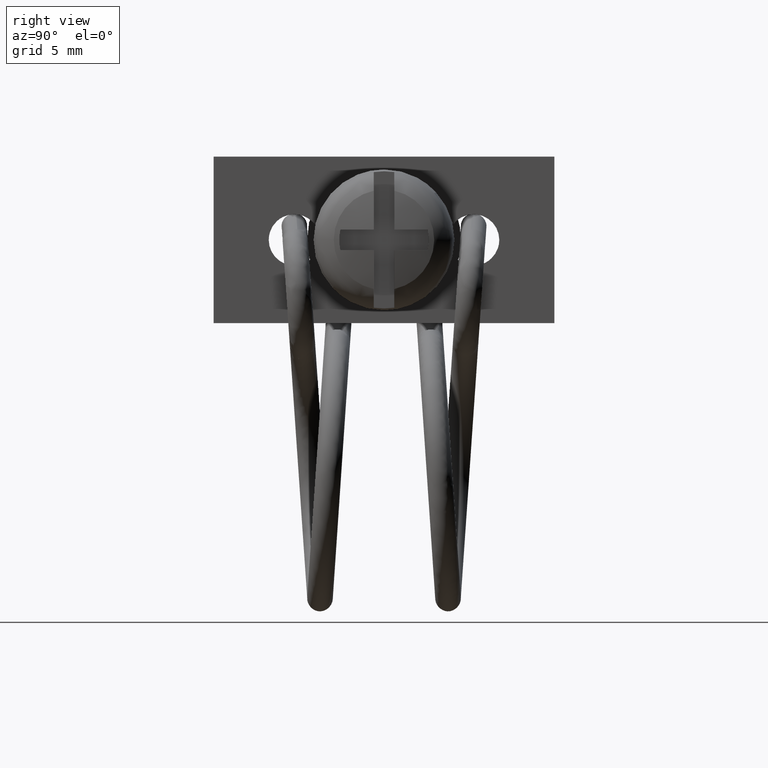
[diagram: clean part render]
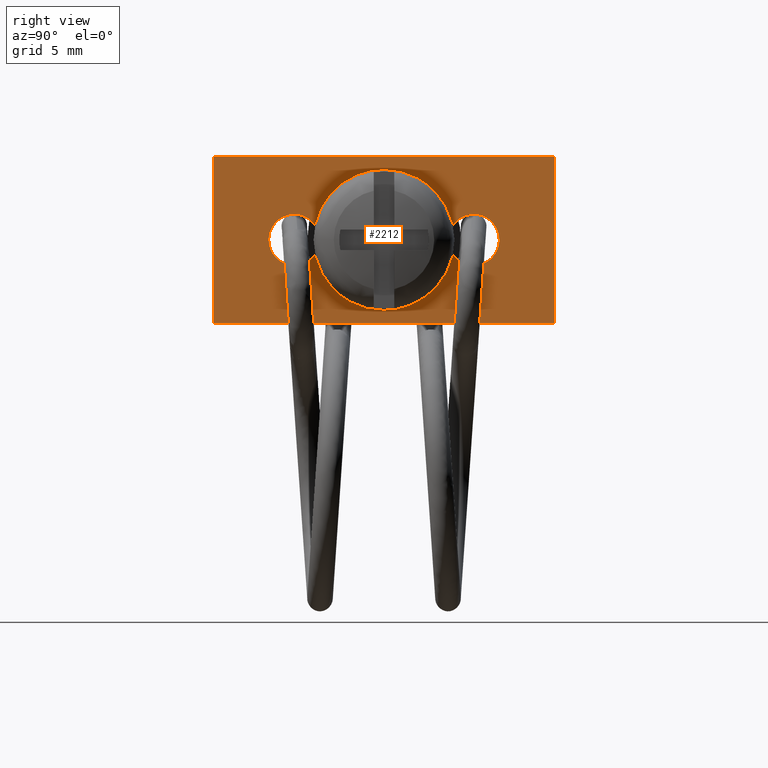
[diagram: same view with one face highlighted and labeled with its STEP entity id]
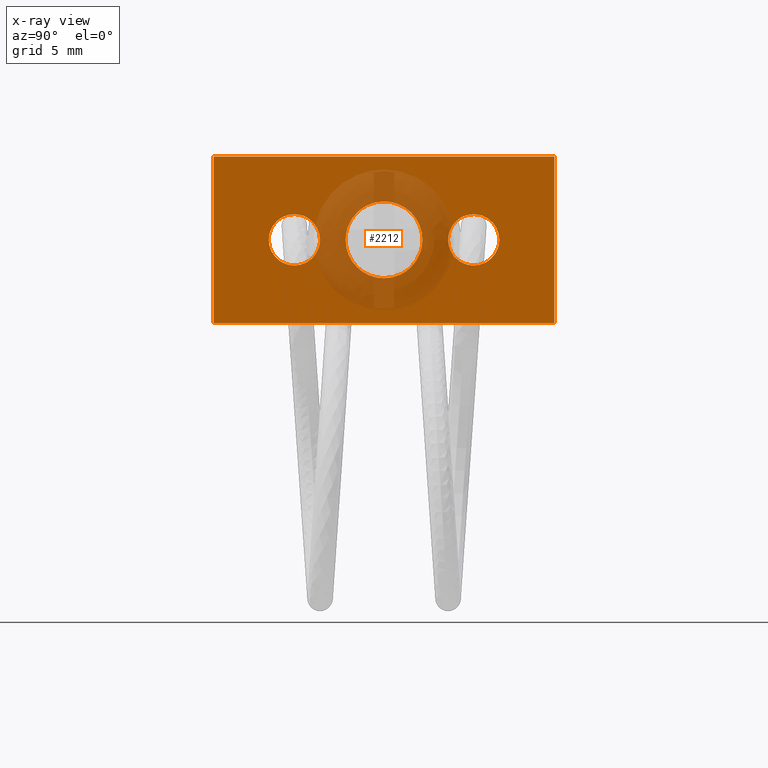
[diagram: x-ray of the same camera — body ghosted, the highlighted face saturated]
A machine part, right view. The second image highlights one B-rep face of the part: STEP entity #2212.
The next image is the same camera in x-ray: the body ghosted, the highlighted face saturated — about 22% of this face is hidden behind the body in this view.
In plain terms, the highlighted face is a freeform B-spline surface patch.
Its self-contained STEP definition (entity closure, byte-faithful):
#1555=CARTESIAN_POINT('',(-5.900000000001095,-1.032531797535872,1.088061513649614));
#1556=VERTEX_POINT('',#1555);
#1557=CARTESIAN_POINT('',(-5.900000000000131,-1.499999999999969,-0.000000306542247));
#1558=VERTEX_POINT('',#1557);
#1559=CARTESIAN_POINT('',(-5.900000000001095,-1.032531797535872,1.088061513649614));
#1560=CARTESIAN_POINT('',(-5.900000000001033,-1.106129832539798,1.018239980555063));
#1561=CARTESIAN_POINT('',(-5.900000000000914,-1.226600928167503,0.878077534558320));
#1562=CARTESIAN_POINT('',(-5.900000000000677,-1.373615478559582,0.625028328913104));
#1563=CARTESIAN_POINT('',(-5.900000000000413,-1.474550840499157,0.336035432404864));
#1564=CARTESIAN_POINT('',(-5.900000000000254,-1.500023612764805,0.114129939488918));
#1565=CARTESIAN_POINT('',(-5.900000000000131,-1.499999999999969,-0.000000306542247));
#1566=B_SPLINE_CURVE_WITH_KNOTS('',3,(#1559,#1560,#1561,#1562,#1563,#1564,#1565),.UNSPECIFIED.,.F.,.U.,(4,1,1,1,4),(8.304054E-009,0.304343907042473,0.551625936408508,0.874988564327312,1.217375603267834),.UNSPECIFIED.);
#1567=EDGE_CURVE('',#1556,#1558,#1566,.T.);
#1569=CARTESIAN_POINT('',(-5.900000000000130,0.0,-1.500000000000171));
#1570=VERTEX_POINT('',#1569);
#1571=CARTESIAN_POINT('',(-5.900000000000131,-1.499999999999969,-0.000000306542247));
#1572=CARTESIAN_POINT('',(-5.900000000000142,-1.500042704179205,-0.134993819110151));
#1573=CARTESIAN_POINT('',(-5.900000000000113,-1.468308313607464,-0.368136428588233));
#1574=CARTESIAN_POINT('',(-5.900000000000148,-1.352906690030002,-0.667259607449130));
#1575=CARTESIAN_POINT('',(-5.900000000000124,-1.207521510338877,-0.903197800757245));
#1576=CARTESIAN_POINT('',(-5.900000000000131,-1.002040813496824,-1.132776335230940));
#1577=CARTESIAN_POINT('',(-5.900000000000168,-0.750222372619721,-1.312436452338162));
#1578=CARTESIAN_POINT('',(-5.900000000000111,-0.404916263680191,-1.460458063210951));
#1579=CARTESIAN_POINT('',(-5.900000000000127,-0.159547670841933,-1.500082084193493));
#1580=CARTESIAN_POINT('',(-5.900000000000130,0.0,-1.500000000000171));
#1581=B_SPLINE_CURVE_WITH_KNOTS('',3,(#1571,#1572,#1573,#1574,#1575,#1576,#1577,#1578,#1579,#1580),.UNSPECIFIED.,.F.,.U.,(4,1,1,1,1,1,1,4),(0.000000030715697,0.404971545806416,0.699500053865000,0.957216848251597,1.233324215148115,1.619890750688521,1.877604828102513,2.356209101540947),.UNSPECIFIED.);
#1582=EDGE_CURVE('',#1558,#1570,#1581,.T.);
#1584=CARTESIAN_POINT('',(-5.900000000001093,1.032531797535873,-1.088061513649955));
#1585=VERTEX_POINT('',#1584);
#1586=CARTESIAN_POINT('',(-5.900000000000130,0.0,-1.500000000000171));
#1587=CARTESIAN_POINT('',(-5.900000000000244,0.118627621835350,-1.500019789771499));
#1588=CARTESIAN_POINT('',(-5.900000000000452,0.373680292147129,-1.469618145456077));
#1589=CARTESIAN_POINT('',(-5.900000000000883,0.730383987527614,-1.329750820967652));
#1590=CARTESIAN_POINT('',(-5.900000000000935,0.942195047924228,-1.173819824457009));
#1591=CARTESIAN_POINT('',(-5.900000000001093,1.032531797535873,-1.088061513649955));
#1592=B_SPLINE_CURVE_WITH_KNOTS('',3,(#1586,#1587,#1588,#1589,#1590,#1591),.UNSPECIFIED.,.F.,.U.,(4,1,1,4),(6.853292E-009,0.355886883613740,0.765152420366507,1.138833966742657),.UNSPECIFIED.);
#1593=EDGE_CURVE('',#1570,#1585,#1592,.T.);
#1667=CARTESIAN_POINT('',(-5.900000000000130,0.0,1.499999999999830));
#1668=VERTEX_POINT('',#1667);
#1669=CARTESIAN_POINT('',(-5.900000000000130,0.0,1.499999999999830));
#1670=CARTESIAN_POINT('',(-5.900000000000272,-0.148294127207763,1.500064826747011));
#1671=CARTESIAN_POINT('',(-5.900000000000480,-0.373642643602029,1.466295249124387));
#1672=CARTESIAN_POINT('',(-5.900000000000818,-0.728116427871650,1.327295485561454));
#1673=CARTESIAN_POINT('',(-5.900000000000961,-0.920713735988198,1.194286910168968));
#1674=CARTESIAN_POINT('',(-5.900000000001095,-1.032531797535872,1.088061513649614));
#1675=B_SPLINE_CURVE_WITH_KNOTS('',3,(#1669,#1670,#1671,#1672,#1673,#1674),.UNSPECIFIED.,.F.,.U.,(4,1,1,4),(6.853397E-009,0.444858228924139,0.676181150906479,1.138833966742657),.UNSPECIFIED.);
#1676=EDGE_CURVE('',#1668,#1556,#1675,.T.);
#1718=CARTESIAN_POINT('',(-5.900000000000130,1.499999999999969,0.000000306541901));
#1719=VERTEX_POINT('',#1718);
#1720=CARTESIAN_POINT('',(-5.900000000001093,1.032531797535873,-1.088061513649955));
#1721=CARTESIAN_POINT('',(-5.900000000001030,1.106129998182039,-1.018239885424675));
#1722=CARTESIAN_POINT('',(-5.900000000000915,1.226602724604285,-0.878078345424862));
#1723=CARTESIAN_POINT('',(-5.900000000000697,1.348029915642163,-0.669032468365363));
#1724=CARTESIAN_POINT('',(-5.900000000000563,1.463046879543928,-0.386716074459029));
#1725=CARTESIAN_POINT('',(-5.900000000000184,1.500106872286609,-0.164870736578521));
#1726=CARTESIAN_POINT('',(-5.900000000000130,1.499999999999969,0.000000306541901));
#1727=B_SPLINE_CURVE_WITH_KNOTS('',3,(#1720,#1721,#1722,#1723,#1724,#1725,#1726),.UNSPECIFIED.,.F.,.U.,(4,1,1,1,4),(8.304033E-009,0.304343907042472,0.551625936408511,0.722813548741769,1.217375603267829),.UNSPECIFIED.);
#1728=EDGE_CURVE('',#1585,#1719,#1727,.T.);
#1730=CARTESIAN_POINT('',(-5.900000000000130,1.499999999999969,0.000000306541901));
#1731=CARTESIAN_POINT('',(-5.900000000000136,1.500021682724829,0.110447039272367));
#1732=CARTESIAN_POINT('',(-5.900000000000106,1.477531470957874,0.312923181658480));
#1733=CARTESIAN_POINT('',(-5.900000000000194,1.392169977830831,0.576746133670498));
#1734=CARTESIAN_POINT('',(-5.900000000000015,1.281655151221123,0.789735842256116));
#1735=CARTESIAN_POINT('',(-5.900000000000218,1.144701102748516,0.979220649435120));
#1736=CARTESIAN_POINT('',(-5.900000000000155,0.979218858541399,1.144698517724781));
#1737=CARTESIAN_POINT('',(-5.900000000000066,0.754837750925436,1.306898278449935));
#1738=CARTESIAN_POINT('',(-5.900000000000182,0.435607785729678,1.455520821769055));
#1739=CARTESIAN_POINT('',(-5.900000000000122,0.159543261076539,1.500090411338176));
#1740=CARTESIAN_POINT('',(-5.900000000000130,0.0,1.499999999999830));
#1741=B_SPLINE_CURVE_WITH_KNOTS('',3,(#1730,#1731,#1732,#1733,#1734,#1735,#1736,#1737,#1738,#1739,#1740),.UNSPECIFIED.,.F.,.U.,(4,1,1,1,1,1,1,1,4),(0.000000030715761,0.331336866893106,0.607460509203656,0.828357660251212,1.049252507287717,1.306956372232151,1.527851760465190,1.877604828102522,2.356209101540949),.UNSPECIFIED.);
#1742=EDGE_CURVE('',#1719,#1668,#1741,.T.);
#1765=CARTESIAN_POINT('',(-5.900000000000813,-4.188354491579388,0.725374323177778));
#1766=VERTEX_POINT('',#1765);
#1767=CARTESIAN_POINT('',(-5.900000000000130,-4.499999999999622,-0.000000370900842));
#1768=VERTEX_POINT('',#1767);
#1769=CARTESIAN_POINT('',(-5.900000000000813,-4.188354491579388,0.725374323177778));
#1770=CARTESIAN_POINT('',(-5.900000000000743,-4.258904621903266,0.658475248955350));
#1771=CARTESIAN_POINT('',(-5.900000000000626,-4.369678970430304,0.517333198887897));
#1772=CARTESIAN_POINT('',(-5.900000000000409,-4.475645173892794,0.266279596467909));
#1773=CARTESIAN_POINT('',(-5.900000000000211,-4.500036099697526,0.092997765195931));
#1774=CARTESIAN_POINT('',(-5.900000000000130,-4.499999999999622,-0.000000370900842));
#1775=B_SPLINE_CURVE_WITH_KNOTS('',3,(#1769,#1770,#1771,#1772,#1773,#1774),.UNSPECIFIED.,.F.,.U.,(4,1,1,4),(9.366217E-009,0.291665252574503,0.532601464205351,0.811583901024203),.UNSPECIFIED.);
#1776=EDGE_CURVE('',#1766,#1768,#1775,.T.);
#1778=CARTESIAN_POINT('',(-5.900000000000130,-3.499999999999690,-1.000000000000171));
#1779=VERTEX_POINT('',#1778);
#1780=CARTESIAN_POINT('',(-5.900000000000130,-4.499999999999622,-0.000000370900842));
#1781=CARTESIAN_POINT('',(-5.900000000000130,-4.500002100046594,-0.065448532134331));
#1782=CARTESIAN_POINT('',(-5.900000000000127,-4.485110616842539,-0.216807784289136));
#1783=CARTESIAN_POINT('',(-5.900000000000150,-4.417898843964864,-0.416136590969004));
#1784=CARTESIAN_POINT('',(-5.900000000000105,-4.314452272544851,-0.588685144265781));
#1785=CARTESIAN_POINT('',(-5.900000000000135,-4.188419942789047,-0.734811707832114));
#1786=CARTESIAN_POINT('',(-5.900000000000108,-4.031835545527999,-0.855472701033760));
#1787=CARTESIAN_POINT('',(-5.900000000000157,-3.798556531606422,-0.967577146280402));
#1788=CARTESIAN_POINT('',(-5.900000000000079,-3.618644943444631,-1.000097335123048));
#1789=CARTESIAN_POINT('',(-5.900000000000130,-3.499999999999690,-1.000000000000171));
#1790=B_SPLINE_CURVE_WITH_KNOTS('',3,(#1780,#1781,#1782,#1783,#1784,#1785,#1786,#1787,#1788,#1789),.UNSPECIFIED.,.F.,.U.,(4,1,1,1,1,1,1,4),(0.000000035211010,0.196349329133705,0.454062426315125,0.625874782290637,0.797664209456594,1.030837526579922,1.214921204998408,1.570805973831176),.UNSPECIFIED.);
#1791=EDGE_CURVE('',#1768,#1779,#1790,.T.);
#1793=CARTESIAN_POINT('',(-5.900000000000812,-2.811645508419993,-0.725374323178118));
#1794=VERTEX_POINT('',#1793);
#1795=CARTESIAN_POINT('',(-5.900000000000130,-3.499999999999690,-1.000000000000171));
#1796=CARTESIAN_POINT('',(-5.900000000000272,-3.381353209078258,-1.000100184153617));
#1797=CARTESIAN_POINT('',(-5.900000000000364,-3.219300236670589,-0.970804297666758));
#1798=CARTESIAN_POINT('',(-5.900000000000689,-2.987845720832607,-0.867108721357843));
#1799=CARTESIAN_POINT('',(-5.900000000000719,-2.877597457692114,-0.788006614315527));
#1800=CARTESIAN_POINT('',(-5.900000000000812,-2.811645508419993,-0.725374323178118));
#1801=B_SPLINE_CURVE_WITH_KNOTS('',3,(#1795,#1796,#1797,#1798,#1799,#1800),.UNSPECIFIED.,.F.,.U.,(4,1,1,4),(7.586088E-009,0.355887627921701,0.486376407151882,0.759222612870655),.UNSPECIFIED.);
#1802=EDGE_CURVE('',#1779,#1794,#1801,.T.);
#1875=CARTESIAN_POINT('',(-5.900000000000130,-3.499999999999690,0.999999999999830));
#1876=VERTEX_POINT('',#1875);
#1877=CARTESIAN_POINT('',(-5.900000000000130,-3.499999999999690,0.999999999999830));
#1878=CARTESIAN_POINT('',(-5.900000000000229,-3.610734097593737,1.000078976371559));
#1879=CARTESIAN_POINT('',(-5.900000000000398,-3.764896286228329,0.974113418484419));
#1880=CARTESIAN_POINT('',(-5.900000000000623,-3.998748487200705,0.875950713270892));
#1881=CARTESIAN_POINT('',(-5.900000000000712,-4.116675556385537,0.793464361866309));
#1882=CARTESIAN_POINT('',(-5.900000000000813,-4.188354491579388,0.725374323177778));
#1883=B_SPLINE_CURVE_WITH_KNOTS('',3,(#1877,#1878,#1879,#1880,#1881,#1882),.UNSPECIFIED.,.F.,.U.,(4,1,1,4),(7.585869E-009,0.332162861794072,0.462650653076990,0.759222612870657),.UNSPECIFIED.);
#1884=EDGE_CURVE('',#1876,#1766,#1883,.T.);
#1924=CARTESIAN_POINT('',(-5.900000000000130,-2.499999999999759,0.000000370900509));
#1925=VERTEX_POINT('',#1924);
#1926=CARTESIAN_POINT('',(-5.900000000000812,-2.811645508419993,-0.725374323178118));
#1927=CARTESIAN_POINT('',(-5.900000000000738,-2.725712674477152,-0.643963797713920));
#1928=CARTESIAN_POINT('',(-5.900000000000580,-2.613934833859558,-0.491670149789388));
#1929=CARTESIAN_POINT('',(-5.900000000000379,-2.519417281578669,-0.236697695365334));
#1930=CARTESIAN_POINT('',(-5.900000000000197,-2.499976111480998,-0.084541251358050));
#1931=CARTESIAN_POINT('',(-5.900000000000130,-2.499999999999759,0.000000370900509));
#1932=B_SPLINE_CURVE_WITH_KNOTS('',3,(#1926,#1927,#1928,#1929,#1930,#1931),.UNSPECIFIED.,.F.,.U.,(4,1,1,4),(9.366200E-009,0.355072026865380,0.557963328561572,0.811583901024209),.UNSPECIFIED.);
#1933=EDGE_CURVE('',#1794,#1925,#1932,.T.);
#1935=CARTESIAN_POINT('',(-5.900000000000130,-2.499999999999759,0.000000370900509));
#1936=CARTESIAN_POINT('',(-5.900000000000159,-2.499979109856027,0.081813202309974));
#1937=CARTESIAN_POINT('',(-5.900000000000110,-2.517673654969885,0.224973959905671));
#1938=CARTESIAN_POINT('',(-5.900000000000167,-2.592472997726572,0.438175956174377));
#1939=CARTESIAN_POINT('',(-5.900000000000071,-2.715698549802251,0.638190681935996));
#1940=CARTESIAN_POINT('',(-5.900000000000204,-2.889102975036270,0.803280047982946));
#1941=CARTESIAN_POINT('',(-5.900000000000022,-3.077335781413258,0.912956720898809));
#1942=CARTESIAN_POINT('',(-5.900000000000211,-3.275026012984923,0.982328496377931));
#1943=CARTESIAN_POINT('',(-5.900000000000108,-3.418187262735819,1.000019101395890));
#1944=CARTESIAN_POINT('',(-5.900000000000130,-3.499999999999690,0.999999999999830));
#1945=B_SPLINE_CURVE_WITH_KNOTS('',3,(#1935,#1936,#1937,#1938,#1939,#1940,#1941,#1942,#1943,#1944),.UNSPECIFIED.,.F.,.U.,(4,1,1,1,1,1,1,4),(0.000000035211648,0.245434718905132,0.429518268672775,0.674959904176194,0.944931254291074,1.141287772809012,1.325371451160292,1.570805973831173),.UNSPECIFIED.);
#1946=EDGE_CURVE('',#1925,#1876,#1945,.T.);
#1969=CARTESIAN_POINT('',(-5.900000000000813,2.811645508420186,0.725374323177778));
#1970=VERTEX_POINT('',#1969);
#1971=CARTESIAN_POINT('',(-5.900000000000130,2.499999999999954,-0.000000370900842));
#1972=VERTEX_POINT('',#1971);
#1973=CARTESIAN_POINT('',(-5.900000000000813,2.811645508420186,0.725374323177778));
#1974=CARTESIAN_POINT('',(-5.900000000000763,2.744164564273627,0.661382548771315));
#1975=CARTESIAN_POINT('',(-5.900000000000639,2.656513944680746,0.551137458211312));
#1976=CARTESIAN_POINT('',(-5.900000000000489,2.567600724565235,0.372931974536817));
#1977=CARTESIAN_POINT('',(-5.900000000000313,2.514184742742387,0.202892650386148));
#1978=CARTESIAN_POINT('',(-5.900000000000223,2.499988842601890,0.071858687519662));
#1979=CARTESIAN_POINT('',(-5.900000000000130,2.499999999999954,-0.000000370900842));
#1980=B_SPLINE_CURVE_WITH_KNOTS('',3,(#1973,#1974,#1975,#1976,#1977,#1978,#1979),.UNSPECIFIED.,.F.,.U.,(4,1,1,1,4),(9.366347E-009,0.278982446187938,0.418467739466519,0.596006751084639,0.811583901024199),.UNSPECIFIED.);
#1981=EDGE_CURVE('',#1970,#1972,#1980,.T.);
#1983=CARTESIAN_POINT('',(-5.900000000000130,3.499999999999885,-1.000000000000171));
#1984=VERTEX_POINT('',#1983);
#1985=CARTESIAN_POINT('',(-5.900000000000130,2.499999999999954,-0.000000370900842));
#1986=CARTESIAN_POINT('',(-5.900000000000133,2.499920137446698,-0.118638542801684));
#1987=CARTESIAN_POINT('',(-5.900000000000127,2.535351035295201,-0.314927463546911));
#1988=CARTESIAN_POINT('',(-5.900000000000132,2.651602703330974,-0.542285969177774));
#1989=CARTESIAN_POINT('',(-5.900000000000123,2.792693259651969,-0.718605238738230));
#1990=CARTESIAN_POINT('',(-5.900000000000135,2.957053924500625,-0.850146542461497));
#1991=CARTESIAN_POINT('',(-5.900000000000127,3.201447077185697,-0.967566967485988));
#1992=CARTESIAN_POINT('',(-5.900000000000136,3.381353487523521,-1.000105695874404));
#1993=CARTESIAN_POINT('',(-5.900000000000130,3.499999999999885,-1.000000000000171));
#1994=B_SPLINE_CURVE_WITH_KNOTS('',3,(#1985,#1986,#1987,#1988,#1989,#1990,#1991,#1992,#1993),.UNSPECIFIED.,.F.,.U.,(4,1,1,1,1,1,4),(0.000000035211793,0.355884848301330,0.589054302381287,0.760864595969814,1.030837526580039,1.214921204998477,1.570805973831177),.UNSPECIFIED.);
#1995=EDGE_CURVE('',#1972,#1984,#1994,.T.);
#1997=CARTESIAN_POINT('',(-5.900000000000813,4.188354491579583,-0.725374323178118));
#1998=VERTEX_POINT('',#1997);
#1999=CARTESIAN_POINT('',(-5.900000000000130,3.499999999999885,-1.000000000000171));
#2000=CARTESIAN_POINT('',(-5.900000000000250,3.610731791285661,-1.000076640036546));
#2001=CARTESIAN_POINT('',(-5.900000000000416,3.788620355888566,-0.970125986239251));
#2002=CARTESIAN_POINT('',(-5.900000000000622,4.019506090550506,-0.863383503632284));
#2003=CARTESIAN_POINT('',(-5.900000000000779,4.133865248988810,-0.777102497091925));
#2004=CARTESIAN_POINT('',(-5.900000000000813,4.188354491579583,-0.725374323178118));
#2005=B_SPLINE_CURVE_WITH_KNOTS('',3,(#1999,#2000,#2001,#2002,#2003,#2004),.UNSPECIFIED.,.F.,.U.,(4,1,1,4),(7.585967E-009,0.332162861794064,0.533827598466912,0.759222612870657),.UNSPECIFIED.);
#2006=EDGE_CURVE('',#1984,#1998,#2005,.T.);
#2079=CARTESIAN_POINT('',(-5.900000000000130,3.499999999999885,0.999999999999830));
#2080=VERTEX_POINT('',#2079);
#2081=CARTESIAN_POINT('',(-5.900000000000130,3.499999999999885,0.999999999999830));
#2082=CARTESIAN_POINT('',(-5.900000000000199,3.424867832963007,1.000014845126690));
#2083=CARTESIAN_POINT('',(-5.900000000000364,3.290431068360451,0.984772486631039));
#2084=CARTESIAN_POINT('',(-5.900000000000541,3.048794734102387,0.906227916847182));
#2085=CARTESIAN_POINT('',(-5.900000000000738,2.897637381418060,0.807119099098788));
#2086=CARTESIAN_POINT('',(-5.900000000000813,2.811645508420186,0.725374323177778));
#2087=B_SPLINE_CURVE_WITH_KNOTS('',3,(#2081,#2082,#2083,#2084,#2085,#2086),.UNSPECIFIED.,.F.,.U.,(4,1,1,4),(7.586352E-009,0.225395021998514,0.403334992546513,0.759222612870657),.UNSPECIFIED.);
#2088=EDGE_CURVE('',#2080,#1970,#2087,.T.);
#2126=CARTESIAN_POINT('',(-5.900000000000130,4.499999999999817,0.000000370900510));
#2127=VERTEX_POINT('',#2126);
#2128=CARTESIAN_POINT('',(-5.900000000000813,4.188354491579583,-0.725374323178118));
#2129=CARTESIAN_POINT('',(-5.900000000000762,4.243554737546618,-0.673009588409601));
#2130=CARTESIAN_POINT('',(-5.900000000000660,4.344643943882962,-0.552338868501440));
#2131=CARTESIAN_POINT('',(-5.900000000000402,4.466347012928384,-0.308527640321082));
#2132=CARTESIAN_POINT('',(-5.900000000000264,4.500071271314963,-0.114136279669953));
#2133=CARTESIAN_POINT('',(-5.900000000000130,4.499999999999817,0.000000370900510));
#2134=B_SPLINE_CURVE_WITH_KNOTS('',3,(#2128,#2129,#2130,#2131,#2132,#2133),.UNSPECIFIED.,.F.,.U.,(4,1,1,4),(9.366813E-009,0.228258546834894,0.469196620105097,0.811583901024207),.UNSPECIFIED.);
#2135=EDGE_CURVE('',#1998,#2127,#2134,.T.);
#2137=CARTESIAN_POINT('',(-5.900000000000130,4.499999999999817,0.000000370900510));
#2138=CARTESIAN_POINT('',(-5.900000000000131,4.500022161605146,0.081813916476333));
#2139=CARTESIAN_POINT('',(-5.900000000000127,4.483836814832454,0.212699320561898));
#2140=CARTESIAN_POINT('',(-5.900000000000151,4.413098683954056,0.426928706770150));
#2141=CARTESIAN_POINT('',(-5.900000000000101,4.312191365032079,0.597629161008560));
#2142=CARTESIAN_POINT('',(-5.900000000000177,4.151932632876717,0.768030958290599));
#2143=CARTESIAN_POINT('',(-5.900000000000073,4.002923421326197,0.871613223451251));
#2144=CARTESIAN_POINT('',(-5.900000000000171,3.778106672375067,0.971267742277033));
#2145=CARTESIAN_POINT('',(-5.900000000000111,3.618647363935537,1.000103916136862));
#2146=CARTESIAN_POINT('',(-5.900000000000130,3.499999999999885,0.999999999999830));
#2147=B_SPLINE_CURVE_WITH_KNOTS('',3,(#2137,#2138,#2139,#2140,#2141,#2142,#2143,#2144,#2145,#2146),.UNSPECIFIED.,.F.,.U.,(4,1,1,1,1,1,1,4),(0.000000035211244,0.245434718904855,0.392701519415336,0.674959904176039,0.834482362033279,1.092200035173761,1.214921204998429,1.570805973831173),.UNSPECIFIED.);
#2148=EDGE_CURVE('',#2127,#2080,#2147,.T.);
#2153=CARTESIAN_POINT('',(-5.900000000000110,-7.314334974221909,3.574674987401674));
#2154=CARTESIAN_POINT('',(-5.900000000000110,7.314335330955909,3.574674987401674));
#2155=CARTESIAN_POINT('',(-5.900000000000110,-7.314334974221909,-3.574675161745499));
#2156=CARTESIAN_POINT('',(-5.900000000000110,7.314335330955909,-3.574675161745499));
#2157=B_SPLINE_SURFACE_WITH_KNOTS('',1,1,((#2153,#2155),(#2154,#2156)),.UNSPECIFIED.,.F.,.F.,.U.,(2,2),(2,2),(0.0,14.628670305177820),(0.0,7.149350149147173),.UNSPECIFIED.);
#2158=CARTESIAN_POINT('',(-5.900000000000130,6.650000000000090,-3.250000000000170));
#2159=VERTEX_POINT('',#2158);
#2160=CARTESIAN_POINT('',(-5.900000000000130,6.650000000000090,3.249999999999930));
#2161=VERTEX_POINT('',#2160);
#2162=CARTESIAN_POINT('',(-5.900000000000130,6.650000000000090,-3.250000000000170));
#2163=CARTESIAN_POINT('',(-5.900000000000130,6.650000000000090,3.249999999999930));
#2164=QUASI_UNIFORM_CURVE('',1,(#2162,#2163),.UNSPECIFIED.,.F.,.U.);
#2165=EDGE_CURVE('',#2159,#2161,#2164,.T.);
#2166=ORIENTED_EDGE('',*,*,#2165,.T.);
#2167=CARTESIAN_POINT('',(-5.900000000000130,-6.649999999999889,3.249999999999930));
#2168=VERTEX_POINT('',#2167);
#2169=CARTESIAN_POINT('',(-5.900000000000130,6.650000000000090,3.249999999999930));
#2170=CARTESIAN_POINT('',(-5.900000000000130,-6.649999999999889,3.249999999999930));
#2171=QUASI_UNIFORM_CURVE('',1,(#2169,#2170),.UNSPECIFIED.,.F.,.U.);
#2172=EDGE_CURVE('',#2161,#2168,#2171,.T.);
#2173=ORIENTED_EDGE('',*,*,#2172,.T.);
#2174=CARTESIAN_POINT('',(-5.900000000000130,-6.649999999999889,-3.250000000000170));
#2175=VERTEX_POINT('',#2174);
#2176=CARTESIAN_POINT('',(-5.900000000000130,-6.649999999999889,3.249999999999930));
#2177=CARTESIAN_POINT('',(-5.900000000000130,-6.649999999999889,-3.250000000000170));
#2178=QUASI_UNIFORM_CURVE('',1,(#2176,#2177),.UNSPECIFIED.,.F.,.U.);
#2179=EDGE_CURVE('',#2168,#2175,#2178,.T.);
#2180=ORIENTED_EDGE('',*,*,#2179,.T.);
#2181=CARTESIAN_POINT('',(-5.900000000000130,-6.649999999999889,-3.250000000000170));
#2182=CARTESIAN_POINT('',(-5.900000000000130,6.650000000000090,-3.250000000000170));
#2183=QUASI_UNIFORM_CURVE('',1,(#2181,#2182),.UNSPECIFIED.,.F.,.U.);
#2184=EDGE_CURVE('',#2175,#2159,#2183,.T.);
#2185=ORIENTED_EDGE('',*,*,#2184,.T.);
#2186=EDGE_LOOP('',(#2166,#2173,#2180,#2185));
#2187=FACE_OUTER_BOUND('',#2186,.T.);
#2188=ORIENTED_EDGE('',*,*,#1995,.F.);
#2189=ORIENTED_EDGE('',*,*,#1981,.F.);
#2190=ORIENTED_EDGE('',*,*,#2088,.F.);
#2191=ORIENTED_EDGE('',*,*,#2148,.F.);
#2192=ORIENTED_EDGE('',*,*,#2135,.F.);
#2193=ORIENTED_EDGE('',*,*,#2006,.F.);
#2194=EDGE_LOOP('',(#2188,#2189,#2190,#2191,#2192,#2193));
#2195=FACE_BOUND('',#2194,.T.);
#2196=ORIENTED_EDGE('',*,*,#1791,.F.);
#2197=ORIENTED_EDGE('',*,*,#1776,.F.);
#2198=ORIENTED_EDGE('',*,*,#1884,.F.);
#2199=ORIENTED_EDGE('',*,*,#1946,.F.);
#2200=ORIENTED_EDGE('',*,*,#1933,.F.);
#2201=ORIENTED_EDGE('',*,*,#1802,.F.);
#2202=EDGE_LOOP('',(#2196,#2197,#2198,#2199,#2200,#2201));
#2203=FACE_BOUND('',#2202,.T.);
#2204=ORIENTED_EDGE('',*,*,#1582,.F.);
#2205=ORIENTED_EDGE('',*,*,#1567,.F.);
#2206=ORIENTED_EDGE('',*,*,#1676,.F.);
#2207=ORIENTED_EDGE('',*,*,#1742,.F.);
#2208=ORIENTED_EDGE('',*,*,#1728,.F.);
#2209=ORIENTED_EDGE('',*,*,#1593,.F.);
#2210=EDGE_LOOP('',(#2204,#2205,#2206,#2207,#2208,#2209));
#2211=FACE_BOUND('',#2210,.T.);
#2212=ADVANCED_FACE('',(#2187,#2195,#2203,#2211),#2157,.F.);